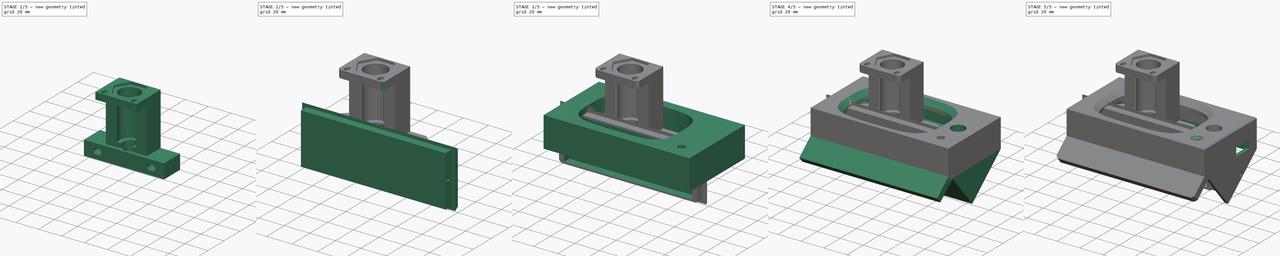
[diagram: build sequence overview — one tinted view per stage of 5, left to right]
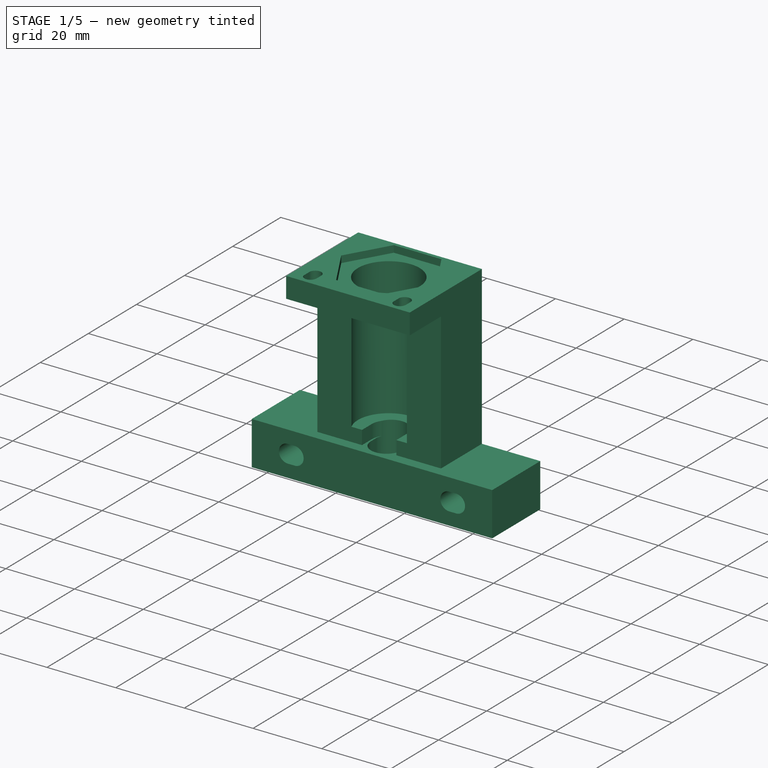
[diagram: stage 1 of 5 — iso view after this stage's code; geometry added in this stage tinted green]
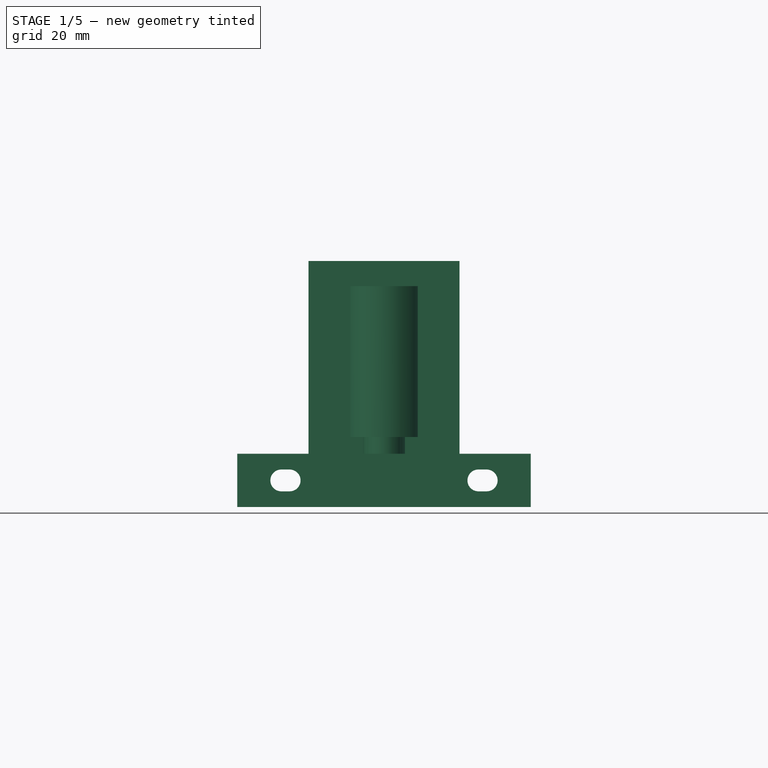
[diagram: stage 1 of 5 — front view after this stage's code; geometry added in this stage tinted green]
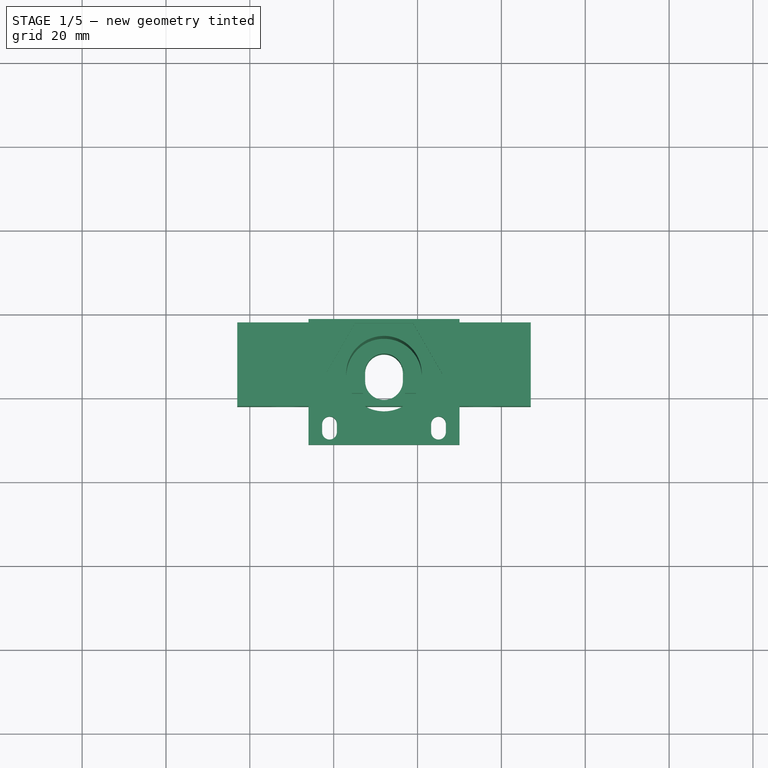
[diagram: stage 1 of 5 — top view after this stage's code; geometry added in this stage tinted green]
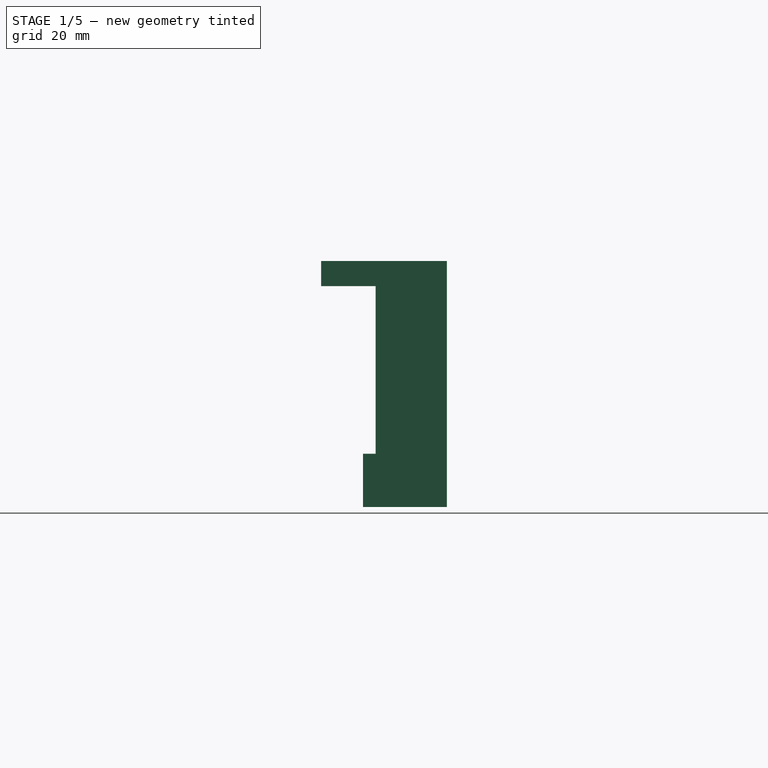
[diagram: stage 1 of 5 — right view after this stage's code; geometry added in this stage tinted green]
FCSTD DOCUMENT  (FreeCAD 0.19R)
Label: ScreenPodOnly
License: All rights reserved
LicenseURL: http://en.wikipedia.org/wiki/All_rights_reserved
objects: Sketcher::SketchObject×27, PartDesign::Pocket×18, PartDesign::Chamfer×12, PartDesign::Pad×8, PartDesign::Body×3, PartDesign::Mirrored×1, PartDesign::Fillet×1
note: 109 computed .brp shape members not serialized (recipe doc carries the construction recipe); baked Part::Feature solids carry a one-line shape summary decoded from their .brp

FEATURE [PartDesign::Body] Body001  label="BoxCap"
  Group = -> [Sketch018,Pad003,Sketch019,Pad004,Sketch020,Pocket008,Sketch021,Sketch024,Pocket012,Mirrored,Chamfer008,Pocket013,Chamfer009,Chamfer010,Chamfer011,Chamfer012]
  Origin = -> Origin001
  Placement = pos=(7,16.6296,-17.3502) rot=(-1,0,0;0.872665rad)
  Tip = -> Chamfer012
FEATURE [Sketcher::SketchObject] Sketch025  label="mountSlots"
  FullyConstrained = true
  MapMode = 5
  Placement = pos=(0,20.9938,0) rot=(0,0.707107,0.707107;3.14159rad)
  sketch-geometry (9):
    g0: ArcOfCircle CenterX=-16.5 CenterY=6.35 CenterZ=0 NormalX=0 NormalY=0 NormalZ=1 AngleXU=0 Radius=2.6 StartAngle=1.5708 EndAngle=4.71239
    g1: ArcOfCircle CenterX=-14.5 CenterY=6.35 CenterZ=0 NormalX=0 NormalY=0 NormalZ=1 AngleXU=0 Radius=2.6 StartAngle=4.71239 EndAngle=7.85398
    g2: LineSegment StartX=-16.5 StartY=3.75 StartZ=0 EndX=-14.5 EndY=3.75 EndZ=0
    g3: LineSegment StartX=-16.5 StartY=8.95 StartZ=0 EndX=-14.5 EndY=8.95 EndZ=0
    g4: ArcOfCircle CenterX=30.5 CenterY=6.35 CenterZ=0 NormalX=0 NormalY=0 NormalZ=1 AngleXU=0 Radius=2.6 StartAngle=1.5708 EndAngle=4.71239
    g5: ArcOfCircle CenterX=32.5 CenterY=6.35 CenterZ=0 NormalX=0 NormalY=0 NormalZ=1 AngleXU=0 Radius=2.6 StartAngle=4.71239 EndAngle=7.85398
    g6: LineSegment StartX=30.5 StartY=3.75 StartZ=0 EndX=32.5 EndY=3.75 EndZ=0
    g7: LineSegment StartX=30.5 StartY=8.95 StartZ=0 EndX=32.5 EndY=8.95 EndZ=0
    g8: Circle CenterX=8 CenterY=6.35 CenterZ=0 NormalX=0 NormalY=0 NormalZ=1 AngleXU=0 Radius=0.77
  constraints (22):
    c: Tangent(g0,g3) = 1.5708
    c: Tangent(g0,g2) = -1.5708
    c: Tangent(g2,g1) = -1.5708
    c: Tangent(g3,g1) = 1.5708
    c: Horizontal(g2)
    c: Equal(g0,g1)
    c: Tangent(g4,g7) = 1.5708
    c: Tangent(g4,g6) = -1.5708
    c: Tangent(g6,g5) = -1.5708
    c: Tangent(g7,g5) = 1.5708
    c: Horizontal(g6)
    c: Equal(g4,g5)
    c: Distance(g1,g1) = 5.2
    c: Distance(g5,g5) = 5.2
    c: DistanceY(g1) = 6.35
    c: Distance(g6) = 2
    c: Distance(g2) = 2
    c: Distance(g1,g4) = 45
    c: Symmetric(g1,g4,g8)
    c: DistanceX(g8) = 8
    c: DistanceY(g5) = 6.35
    c: Diameter(g8) = 1.54
FEATURE [Sketcher::SketchObject] Sketch026  label="hex"
  FullyConstrained = true
  MapMode = 5
  Placement = pos=(0,0,56.7) rot=(0,0,1;0rad)
  sketch-geometry (8):
    g0: Circle CenterX=-8 CenterY=5 CenterZ=0 NormalX=0 NormalY=0 NormalZ=1 AngleXU=0 Radius=11
    g1: LineSegment StartX=5.85641 StartY=5 StartZ=0 EndX=-1.0718 EndY=17 EndZ=0
    g2: LineSegment StartX=-1.0718 StartY=17 StartZ=0 EndX=-14.9282 EndY=17 EndZ=0
    g3: LineSegment StartX=-14.9282 StartY=17 StartZ=0 EndX=-21.8564 EndY=5 EndZ=0
    g4: LineSegment StartX=-21.8564 StartY=5 StartZ=0 EndX=-14.9282 EndY=-7 EndZ=0
    g5: LineSegment StartX=-14.9282 StartY=-7 StartZ=0 EndX=-1.0718 EndY=-7 EndZ=0
    g6: LineSegment StartX=-1.0718 StartY=-7 StartZ=0 EndX=5.85641 EndY=5 EndZ=0
    g7: Circle CenterX=-8 CenterY=5 CenterZ=0 NormalX=0 NormalY=0 NormalZ=1 AngleXU=0 Radius=13.8564
  constraints (19):
    c: Diameter(g0) = 22
    c: DistanceX(g0) = -8
    c: DistanceY(g0) = 5
    c: Coincident(g1,g2)
    c: Coincident(g2,g3)
    c: Coincident(g3,g4)
    c: Coincident(g4,g5)
    c: Coincident(g5,g6)
    c: Coincident(g6,g1)
    c: Equal(g1, g2-g6) x5
    c: PointOnObject(g1,g7)
    c: PointOnObject(g2,g7)
    c: PointOnObject(g3,g7)
    c: PointOnObject(g4,g7)
    c: PointOnObject(g5,g7)
    c: PointOnObject(g6,g7)
    c: Coincident(g7,g0)
    c: Distance(g1,g4) = 24
    c: Horizontal(g2)
FEATURE [Sketcher::SketchObject] Sketch027  label="StepperPlatform"
  FullyConstrained = false
  MapMode = 5
  Placement = pos=(0,0,52.7) rot=(0,0,1;0rad)
  sketch-geometry (22):
    g0: Circle CenterX=-21 CenterY=18 CenterZ=0 NormalX=0 NormalY=0 NormalZ=1 AngleXU=0 Radius=1.4
    g1: Circle CenterX=5 CenterY=18 CenterZ=0 NormalX=0 NormalY=0 NormalZ=1 AngleXU=0 Radius=1.4
    g2: Circle CenterX=-21 CenterY=-8 CenterZ=0 NormalX=0 NormalY=0 NormalZ=1 AngleXU=0 Radius=1.4
    g3: Circle CenterX=5 CenterY=-8 CenterZ=0 NormalX=0 NormalY=0 NormalZ=1 AngleXU=0 Radius=1.4
    g4: LineSegment StartX=-21 StartY=18 StartZ=0 EndX=5 EndY=18 EndZ=0
    g5: LineSegment StartX=5 StartY=18 StartZ=0 EndX=5 EndY=-8 EndZ=0
    g6: LineSegment StartX=5 StartY=-8 StartZ=0 EndX=-21 EndY=-8 EndZ=0
    g7: LineSegment StartX=-21 StartY=-8 StartZ=0 EndX=-21 EndY=18 EndZ=0
    g8: Circle CenterX=-8 CenterY=5 CenterZ=0 NormalX=0 NormalY=0 NormalZ=1 AngleXU=0 Radius=1.66613
    g9: LineSegment StartX=-26 StartY=18 StartZ=0 EndX=10 EndY=18 EndZ=0
    g10: LineSegment StartX=10 StartY=18 StartZ=0 EndX=10 EndY=-12 EndZ=0
    g11: LineSegment StartX=10 StartY=-12 StartZ=0 EndX=-26 EndY=-12 EndZ=0
    g12: LineSegment StartX=-26 StartY=-12 StartZ=0 EndX=-26 EndY=18 EndZ=0
    g13: LineSegment StartX=-8 StartY=22.1839 StartZ=0 EndX=-8 EndY=5 EndZ=0
    g14: ArcOfCircle CenterX=-21 CenterY=-7 CenterZ=0 NormalX=0 NormalY=0 NormalZ=1 AngleXU=0 Radius=1.75 StartAngle=0 EndAngle=3.14159
    g15: ArcOfCircle CenterX=-21 CenterY=-9 CenterZ=0 NormalX=0 NormalY=0 NormalZ=1 AngleXU=0 Radius=1.75 StartAngle=3.14159 EndAngle=6.28319
    g16: LineSegment StartX=-22.75 StartY=-7 StartZ=0 EndX=-22.75 EndY=-9 EndZ=0
    g17: LineSegment StartX=-19.25 StartY=-7 StartZ=0 EndX=-19.25 EndY=-9 EndZ=0
    g18: ArcOfCircle CenterX=5 CenterY=-7 CenterZ=0 NormalX=0 NormalY=0 NormalZ=1 AngleXU=0 Radius=1.75 StartAngle=1e-16 EndAngle=3.14159
    g19: ArcOfCircle CenterX=5 CenterY=-9 CenterZ=0 NormalX=0 NormalY=0 NormalZ=1 AngleXU=0 Radius=1.75 StartAngle=3.14159 EndAngle=6.28319
    g20: LineSegment StartX=3.25 StartY=-7 StartZ=0 EndX=3.25 EndY=-9 EndZ=0
    g21: LineSegment StartX=6.75 StartY=-7 StartZ=0 EndX=6.75 EndY=-9 EndZ=0
  constraints (52):
    c: Coincident(g4,g0)
    c: Coincident(g4,g1)
    c: Horizontal(g4)
    c: Coincident(g4,g5)
    c: Coincident(g5,g3)
    c: Coincident(g5,g6)
    c: Coincident(g6,g2)
    c: Horizontal(g6)
    c: Coincident(g6,g7)
    c: Coincident(g7,g4)
    c: Distance(g7) = 26
    c: Equal(g7,g4)
    c: Equal(g4,g5)
    c: Vertical(g7)
    c: DistanceX(g8) = -8
    c: DistanceY(g8) = 5
    c: Diameter(g0) = 2.8
    c: Equal(g0,g1)
    c: Equal(g0,g3)
    c: Equal(g0,g2)
    c: Coincident(g9,g10)
    c: Coincident(g10,g11)
    c: Coincident(g11,g12)
    c: Coincident(g12,g9)
    c: Horizontal(g9)
    c: Horizontal(g11)
    c: Vertical(g10)
    c: Vertical(g12)
    c: Distance(g9) = 36
    c: Coincident(g13,g8)
    c: Tangent(g14,g17) = 1.5708
    c: Tangent(g14,g16) = -1.5708
    c: Tangent(g16,g15) = -1.5708
    c: Tangent(g17,g15) = 1.5708
    c: Vertical(g16)
    c: Equal(g14,g15)
    c: PointOnObject(g14,g7)
    c: Distance(g14,g2) = 1
    c: Distance(g15,g2) = 1
    c: Tangent(g18,g21) = 1.5708
    c: Tangent(g18,g20) = -1.5708
    c: Tangent(g20,g19) = -1.5708
    c: Tangent(g21,g19) = 1.5708
    c: Vertical(g20)
    c: Equal(g18,g19)
    c: PointOnObject(g18,g5)
    c: Distance(g18,g3) = 1
    c: Distance(g19,g3) = 1
    c: Diameter(g18) = 3.5
    c: Diameter(g14) = 3.5
    c: DistanceY(g9) = 18
    c: DistanceY(g10) = -12
FEATURE [Sketcher::SketchObject] Sketch028  label="leadSlot"
  FullyConstrained = true
  MapMode = 5
  Placement = pos=(0,0,52.7) rot=(0,0,1;0rad)
  sketch-geometry (4):
    g0: ArcOfCircle CenterX=-8 CenterY=5 CenterZ=0 NormalX=0 NormalY=0 NormalZ=1 AngleXU=0 Radius=5 StartAngle=2e-16 EndAngle=3.14159
    g1: LineSegment StartX=-3 StartY=5 StartZ=0 EndX=-3 EndY=-7.39 EndZ=0
    g2: LineSegment StartX=-3 StartY=-7.39 StartZ=0 EndX=-13 EndY=-7.39 EndZ=0
    g3: LineSegment StartX=-13 StartY=-7.39 StartZ=0 EndX=-13 EndY=5 EndZ=0
  constraints (11):
    c: Tangent(g0,g1) = 1.5708
    c: Coincident(g1,g2)
    c: Horizontal(g2)
    c: Coincident(g2,g3)
    c: Vertical(g3)
    c: Diameter(g0) = 10
    c: Vertical(g1)
    c: DistanceX(g0) = -8
    c: DistanceY(g0) = 5
    c: Tangent(g3,g0) = 1.5708
    c: Distance(g1) = 12.39
FEATURE [Sketcher::SketchObject] Sketch029  label="BottomBit"
  FullyConstrained = false
  MapMode = 5
  Support = -> [XY_Plane002]
  sketch-geometry (5):
    g0: LineSegment StartX=-43 StartY=18 StartZ=0 EndX=27 EndY=18 EndZ=0
    g1: LineSegment StartX=27 StartY=-2 StartZ=0 EndX=-43 EndY=-2 EndZ=0
    g2: LineSegment StartX=27 StartY=18 StartZ=0 EndX=27 EndY=-2 EndZ=0
    g3: LineSegment StartX=-43 StartY=18 StartZ=0 EndX=-43 EndY=-2 EndZ=0
    g4: LineSegment StartX=-8 StartY=20.77 StartZ=0 EndX=-8 EndY=17.2529 EndZ=0
  constraints (13):
    c: Horizontal(g1)
    c: DistanceY(g1) = -2
    c: DistanceY(g0) = 18
    c: Coincident(g2,g0)
    c: Vertical(g2)
    c: Coincident(g3,g0)
    c: Vertical(g3)
    c: Coincident(g3,g1)
    c: Coincident(g1,g2)
    c: Horizontal(g0)
    c: Symmetric(g0,g0,g4)
    c: DistanceX(g4) = -8
    c: Distance(g0) = 70
FEATURE [PartDesign::Pad] Pad005
  Direction = (1,1,1)
  Length = 12.7
  Length2 = 100
  Profile = -> Sketch029
  Type = 0
FEATURE [Sketcher::SketchObject] Sketch012  label="towerProper"
  FullyConstrained = false
  MapMode = 5
  Placement = pos=(0,0,12.7) rot=(0,0,1;0rad)
  Support = -> [Pad005]
  sketch-geometry (5):
    g0: LineSegment StartX=-26 StartY=18 StartZ=0 EndX=10 EndY=18 EndZ=0
    g1: LineSegment StartX=10 StartY=18 StartZ=0 EndX=10 EndY=1 EndZ=0
    g2: LineSegment StartX=10 StartY=1 StartZ=0 EndX=-26 EndY=1 EndZ=0
    g3: LineSegment StartX=-26 StartY=1 StartZ=0 EndX=-26 EndY=18 EndZ=0
    g4: LineSegment StartX=-8 StartY=21.6614 StartZ=0 EndX=-8 EndY=16.5307 EndZ=0
  constraints (13):
    c: Coincident(g0,g1)
    c: Coincident(g1,g2)
    c: Coincident(g2,g3)
    c: Coincident(g3,g0)
    c: Horizontal(g2)
    c: Vertical(g1)
    c: Vertical(g3)
    c: Distance(g0) = 36
    c: Vertical(g4)
    c: Symmetric(g0,g0,g4)
    c: DistanceX(g4) = -8
    c: DistanceY(g0) = 18
    c: DistanceY(g1) = 1
FEATURE [PartDesign::Pad] Pad006
  BaseFeature = -> Pad005
  Direction = (1,1,1)
  Length = 40
  Length2 = 100
  Profile = -> Sketch012
  Type = 0
FEATURE [PartDesign::Pocket] Pocket016
  BaseFeature = -> Pad006
  Length = 40
  Length2 = 100
  Profile = -> Sketch028
  Type = 0
FEATURE [PartDesign::Pocket] Pocket014
  BaseFeature = -> Pocket016
  Length = 5
  Length2 = 100
  Profile = -> Sketch025
  Type = 1
FEATURE [PartDesign::Pad] Pad007
  BaseFeature = -> Pocket014
  Direction = (1,1,1)
  Length = 6
  Length2 = 100
  Profile = -> Sketch027
  Type = 0
FEATURE [PartDesign::Pocket] Pocket017
  BaseFeature = -> Pad007
  Length = 2
  Length2 = 100
  Profile = -> Sketch026
  Reversed = true
  Type = 0
FEATURE [Sketcher::SketchObject] Sketch030  label="leadscrew"
  FullyConstrained = true
  MapMode = 5
  Placement = pos=(0,0,12.7) rot=(0,0,1;0rad)
  sketch-geometry (4):
    g0: ArcOfCircle CenterX=-8 CenterY=6 CenterZ=0 NormalX=0 NormalY=0 NormalZ=1 AngleXU=0 Radius=4.5 StartAngle=1e-16 EndAngle=3.14159
    g1: ArcOfCircle CenterX=-8 CenterY=4 CenterZ=0 NormalX=0 NormalY=0 NormalZ=1 AngleXU=0 Radius=4.5 StartAngle=3.14159 EndAngle=6.28319
    g2: LineSegment StartX=-12.5 StartY=6 StartZ=0 EndX=-12.5 EndY=4 EndZ=0
    g3: LineSegment StartX=-3.5 StartY=6 StartZ=0 EndX=-3.5 EndY=4 EndZ=0
  constraints (10):
    c: Tangent(g0,g3) = 1.5708
    c: Tangent(g0,g2) = -1.5708
    c: Tangent(g2,g1) = -1.5708
    c: Tangent(g3,g1) = 1.5708
    c: Vertical(g2)
    c: Equal(g0,g1)
    c: DistanceY(g1) = 4
    c: DistanceY(g0) = 6
    c: DistanceX(g0) = -8
    c: Diameter(g0) = 9
FEATURE [PartDesign::Pocket] Pocket015
  BaseFeature = -> Pocket017
  Length = 22
  Length2 = 100
  Profile = -> Sketch030
  Type = 4
FEATURE [Sketcher::SketchObject] Sketch013  label="counterbore"
  FullyConstrained = true
  MapMode = 5
  Placement = pos=(0,0,56.7) rot=(0,0,1;0rad)
  Support = -> [Pocket015]
  sketch-geometry (1):
    g0: Circle CenterX=-8 CenterY=5 CenterZ=0 NormalX=0 NormalY=0 NormalZ=1 AngleXU=0 Radius=9
  constraints (3):
    c: DistanceX(g0) = -8
    c: DistanceY(g0) = 5
    c: Diameter(g0) = 18
FEATURE [PartDesign::Pocket] Pocket018
  BaseFeature = -> Pocket015
  Length = 40
  Length2 = 100
  Profile = -> Sketch013
  Type = 0
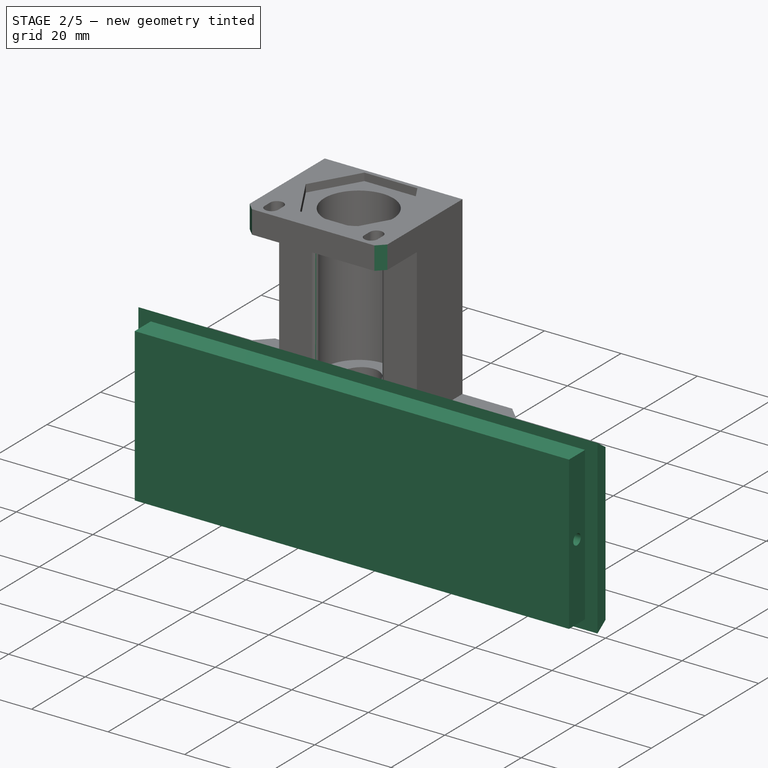
[diagram: stage 2 of 5 — iso view after this stage's code; geometry added in this stage tinted green]
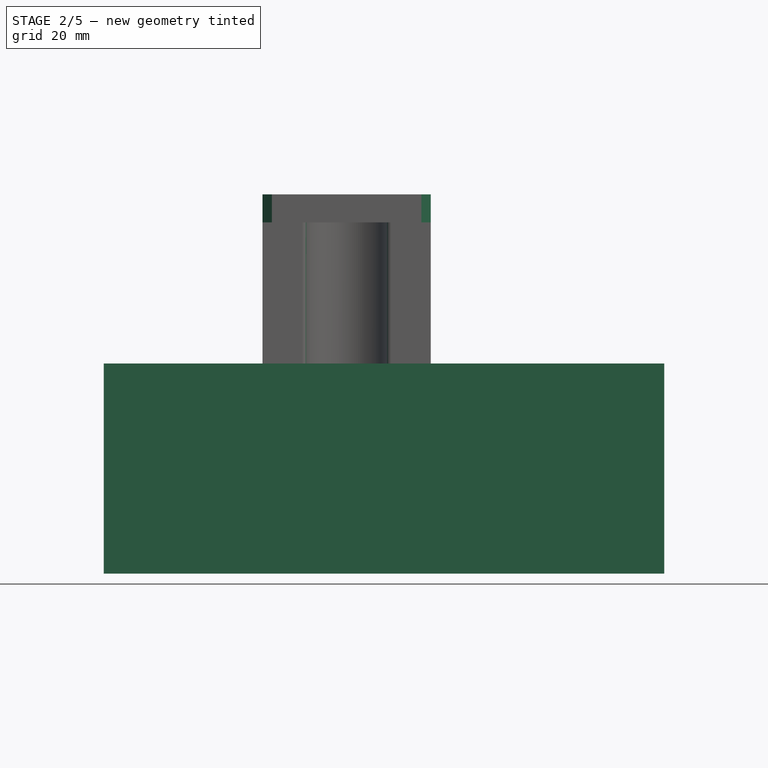
[diagram: stage 2 of 5 — front view after this stage's code; geometry added in this stage tinted green]
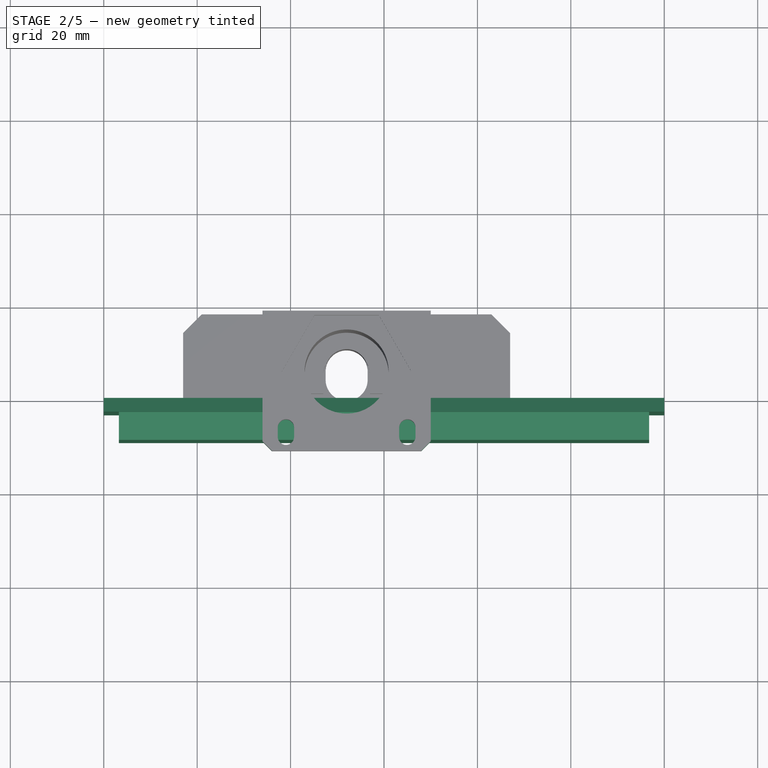
[diagram: stage 2 of 5 — top view after this stage's code; geometry added in this stage tinted green]
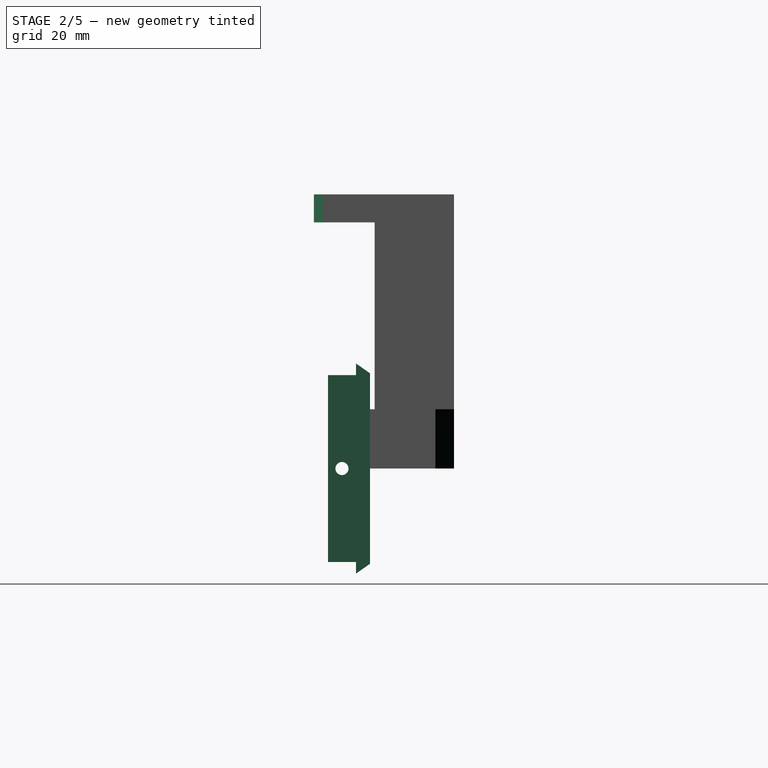
[diagram: stage 2 of 5 — right view after this stage's code; geometry added in this stage tinted green]
FEATURE [Sketcher::SketchObject] Sketch017
  ExternalGeometry = -> [Chamfer001]
  FullyConstrained = false
  MapMode = 5
  Placement = pos=(0,13.4282,-16.0031) rot=(1,0,0;3.83972rad)
  Support = -> [Chamfer001]
  sketch-geometry (4):
    g0: LineSegment StartX=-53 StartY=-24.6078 StartZ=0 EndX=67 EndY=-24.6078 EndZ=0
    g1: LineSegment StartX=67 StartY=-24.6078 StartZ=0 EndX=67 EndY=20.3922 EndZ=0
    g2: LineSegment StartX=67 StartY=20.3922 StartZ=0 EndX=-53 EndY=20.3922 EndZ=0
    g3: LineSegment StartX=-53 StartY=20.3922 StartZ=0 EndX=-53 EndY=-24.6078 EndZ=0
  constraints (11):
    c: Coincident(g0,g1)
    c: Coincident(g1,g2)
    c: Coincident(g2,g3)
    c: Coincident(g3,g0)
    c: Horizontal(g0)
    c: Horizontal(g2)
    c: Vertical(g1)
    c: Vertical(g3)
    c: Distance(g2) = 120
    c: DistanceX(g2) = -53
    c: Distance(g3) = 45
FEATURE [Sketcher::SketchObject] Sketch018
  FullyConstrained = true
  MapMode = 5
  Placement = pos=(0,0,0) rot=(1,0,0;1.5708rad)
  Support = -> [XZ_Plane001]
  sketch-geometry (4):
    g0: LineSegment StartX=-60 StartY=22.5 StartZ=0 EndX=60 EndY=22.5 EndZ=0
    g1: LineSegment StartX=60 StartY=22.5 StartZ=0 EndX=60 EndY=-22.5 EndZ=0
    g2: LineSegment StartX=60 StartY=-22.5 StartZ=0 EndX=-60 EndY=-22.5 EndZ=0
    g3: LineSegment StartX=-60 StartY=-22.5 StartZ=0 EndX=-60 EndY=22.5 EndZ=0
  constraints (10):
    c: Coincident(g0,g1)
    c: Coincident(g1,g2)
    c: Coincident(g2,g3)
    c: Coincident(g3,g0)
    c: Horizontal(g2)
    c: Vertical(g3)
    c: Symmetric(g0,g0,g-2)
    c: Distance(g0) = 120
    c: Distance(g1) = 45
    c: Symmetric(g1,g0,g-1)
FEATURE [PartDesign::Pad] Pad003
  Direction = (1,1,1)
  Length = 3
  Length2 = 100
  Placement = pos=(0,0,0) rot=(1,0,0;1.5708rad)
  Profile = -> Sketch018
  Type = 0
FEATURE [Sketcher::SketchObject] Sketch019
  FullyConstrained = true
  MapMode = 5
  Placement = pos=(0,-3,7e-16) rot=(1,0,0;1.5708rad)
  Support = -> [Pad003]
  sketch-geometry (4):
    g0: LineSegment StartX=-56.75 StartY=20 StartZ=0 EndX=56.75 EndY=20 EndZ=0
    g1: LineSegment StartX=56.75 StartY=20 StartZ=0 EndX=56.75 EndY=-20 EndZ=0
    g2: LineSegment StartX=56.75 StartY=-20 StartZ=0 EndX=-56.75 EndY=-20 EndZ=0
    g3: LineSegment StartX=-56.75 StartY=-20 StartZ=0 EndX=-56.75 EndY=20 EndZ=0
  constraints (11):
    c: Coincident(g0,g1)
    c: Coincident(g1,g2)
    c: Coincident(g2,g3)
    c: Coincident(g3,g0)
    c: Horizontal(g0)
    c: Horizontal(g2)
    c: Vertical(g1)
    c: Vertical(g3)
    c: Distance(g0) = 113.5
    c: Distance(g1) = 40
    c: Symmetric(g1,g0,g-1)
FEATURE [PartDesign::Pad] Pad004
  BaseFeature = -> Pad003
  Direction = (1,1,1)
  Length = 6
  Length2 = 100
  Placement = pos=(0,0,0) rot=(1,0,0;1.5708rad)
  Profile = -> Sketch019
  Type = 0
FEATURE [Sketcher::SketchObject] Sketch020
  FullyConstrained = true
  MapMode = 5
  Placement = pos=(56.75,0,0) rot=(0.707107,0,0.707107;3.14159rad)
  Support = -> [Pad004]
  sketch-geometry (1):
    g0: Circle CenterX=0 CenterY=6 CenterZ=0 NormalX=0 NormalY=0 NormalZ=1 AngleXU=0 Radius=1.4
  constraints (3):
    c: PointOnObject(g0,g-2)
    c: Diameter(g0) = 2.8
    c: DistanceY(g0) = 6
FEATURE [PartDesign::Pocket] Pocket008
  BaseFeature = -> Pad004
  Length = 5
  Length2 = 100
  Placement = pos=(0,0,0) rot=(1,0,0;1.5708rad)
  Profile = -> Sketch020
  Type = 1
FEATURE [PartDesign::Body] Body  label="ScreenBox"
  Group = -> [Sketch,Pad,Sketch001,Sketch004,Pocket001,Pocket,Sketch005,Pocket002,Chamfer,Sketch006,Pad001,Sketch007,Pocket003,Sketch008,Pocket004,Sketch009,Pocket005,Sketch010,Pad002,Sketch015,Pocket006,Sketch016,Pocket007,Chamfer001,Sketch017,Sketch022,Pocket010,Chamfer005,Chamfer006,Sketch023,Pocket011,Chamfer007]
  Origin = -> Origin
  Tip = -> Chamfer007
FEATURE [Sketcher::SketchObject] Sketch024
  ExternalGeometry = -> [Pocket008]
  FullyConstrained = false
  MapMode = 5
  Placement = pos=(60,0,0) rot=(0.707107,0,0.707107;3.14159rad)
  Support = -> [Pocket008]
  sketch-geometry (3):
    g0: LineSegment StartX=-22.5 StartY=3 StartZ=0 EndX=-17.8755 EndY=-3.60453 EndZ=0
    g1: LineSegment StartX=-17.8755 StartY=-3.60453 StartZ=0 EndX=-35.5163 EndY=-3.60453 EndZ=0
    g2: LineSegment StartX=-35.5163 StartY=-3.60453 StartZ=0 EndX=-22.5 EndY=3 EndZ=0
  constraints (6):
    c: Coincident(g0,g1)
    c: Horizontal(g1)
    c: Coincident(g1,g2)
    c: Coincident(g2,g0)
    c: Angle(g0) = -0.959931
    c: Coincident(g0,g-3)
FEATURE [PartDesign::Pocket] Pocket012
  BaseFeature = -> Pocket008
  Length = 5
  Length2 = 100
  Placement = pos=(0,0,0) rot=(1,0,0;1.5708rad)
  Profile = -> Sketch024
  Type = 1
FEATURE [PartDesign::Mirrored] Mirrored
  BaseFeature = -> Pocket012
  MirrorPlane = -> Sketch024 [V_Axis]
  Originals = -> [Pocket012]
  Placement = pos=(0,0,0) rot=(1,0,0;1.5708rad)
FEATURE [PartDesign::Fillet] Fillet
  Base = -> Pocket018 [Edge83,Edge72]
  BaseFeature = -> Pocket018
  Radius = 1
  SupportTransform = false
FEATURE [PartDesign::Chamfer] Chamfer014
  Angle = 45
  Base = -> Fillet [Edge52,Edge57]
  BaseFeature = -> Fillet
  ChamferType = 0
  FlipDirection = false
  Size = 2
  Size2 = 1
  SupportTransform = false
FEATURE [PartDesign::Chamfer] Chamfer013
  Angle = 45
  Base = -> Chamfer014 [Edge135,Edge133]
  BaseFeature = -> Chamfer014
  ChamferType = 0
  FlipDirection = false
  Size = 4
  Size2 = 1
  SupportTransform = false
FEATURE [PartDesign::Body] Body002  label="Ztower"
  Group = -> [Sketch029,Pad005,Sketch028,Sketch030,Sketch027,Sketch026,Sketch025,Sketch012,Pad006,Pocket016,Pocket014,Pad007,Pocket017,Pocket015,Sketch013,Pocket018,Fillet,Chamfer014,Chamfer013]
  Origin = -> Origin002
  Placement = pos=(-0.401038,-43.0056,-24.8059) rot=(0.007695,0.882707,-0.469861;3.13341rad)
  Tip = -> Chamfer013
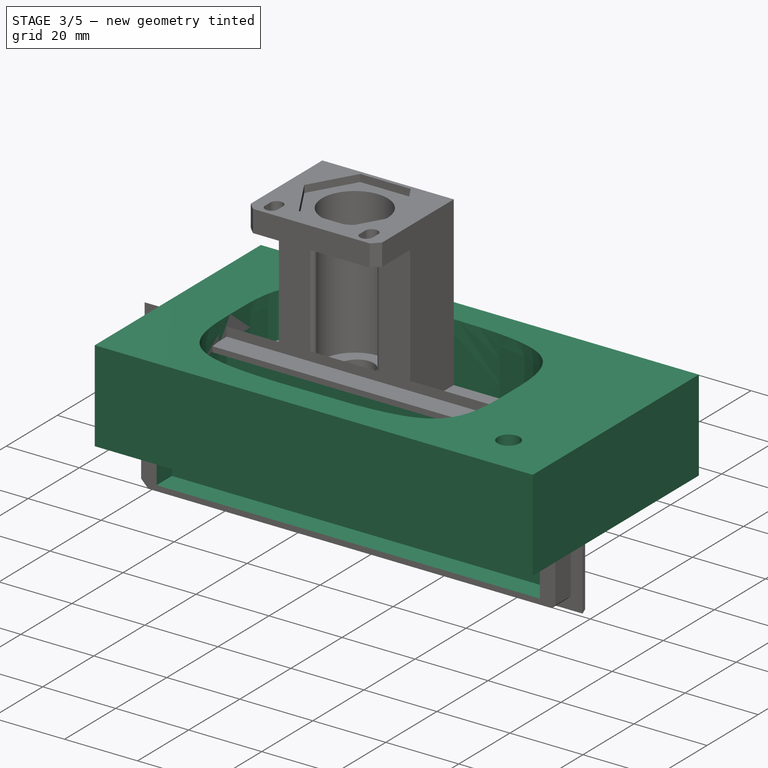
[diagram: stage 3 of 5 — iso view after this stage's code; geometry added in this stage tinted green]
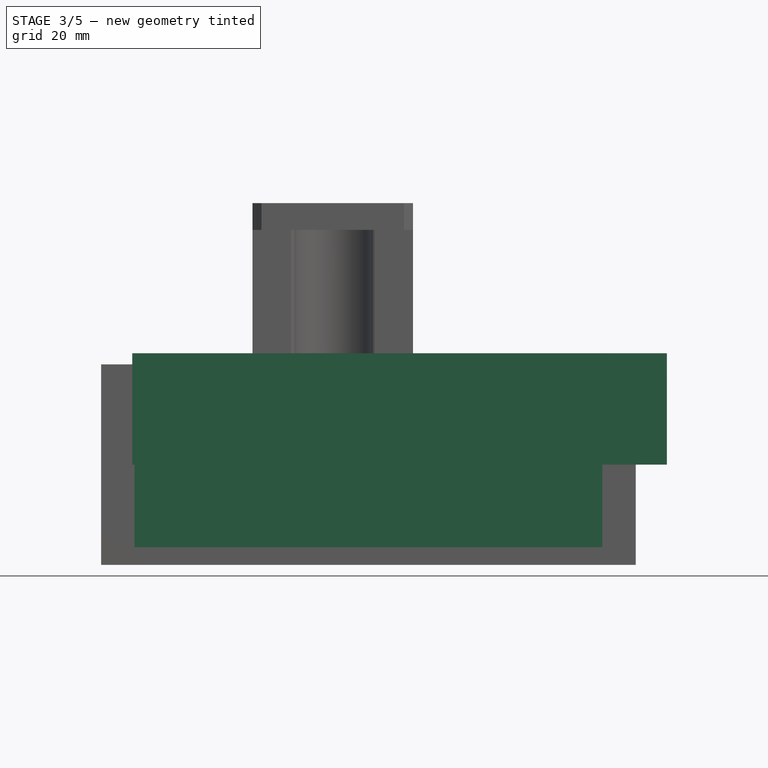
[diagram: stage 3 of 5 — front view after this stage's code; geometry added in this stage tinted green]
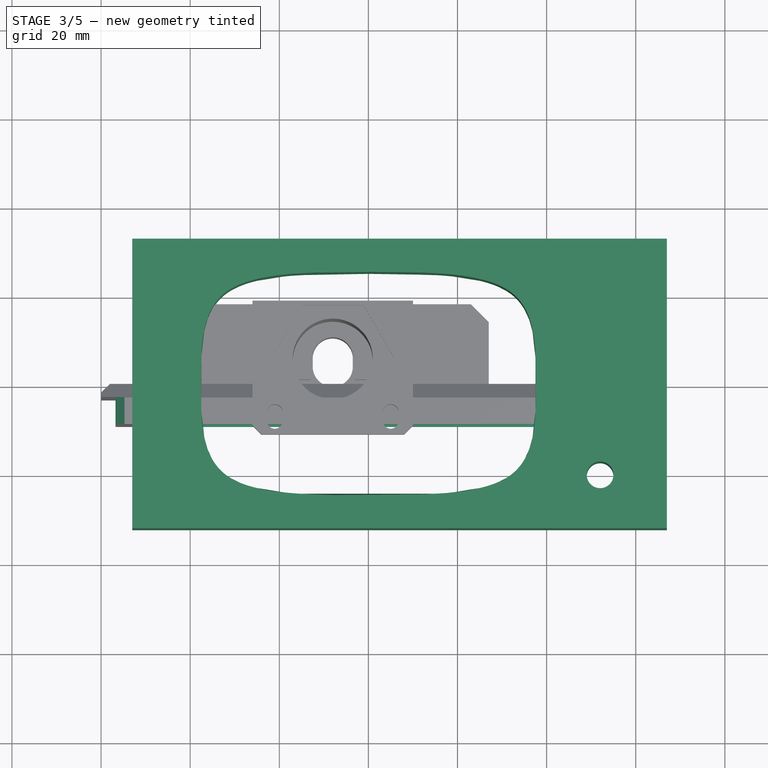
[diagram: stage 3 of 5 — top view after this stage's code; geometry added in this stage tinted green]
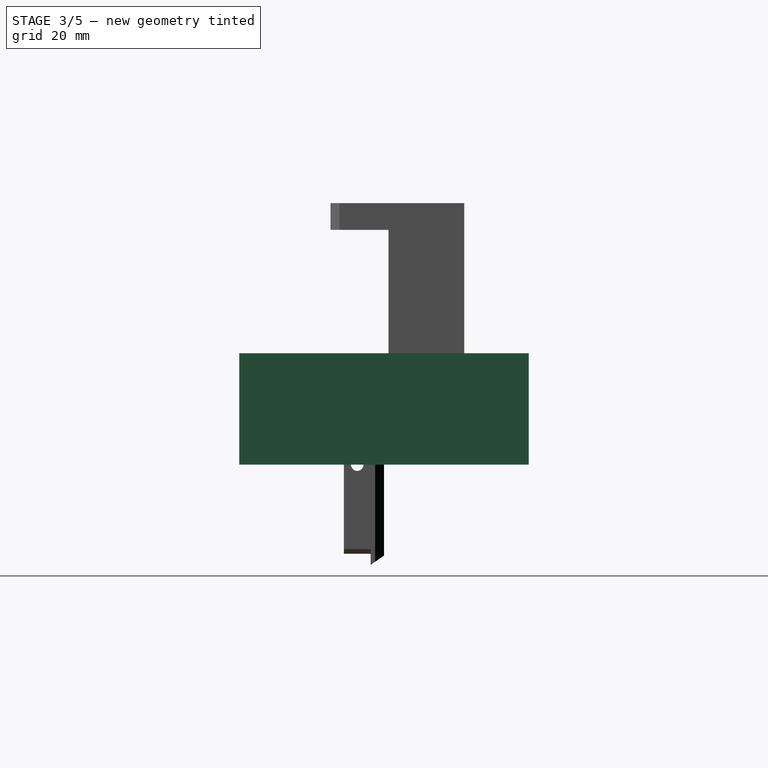
[diagram: stage 3 of 5 — right view after this stage's code; geometry added in this stage tinted green]
FEATURE [Sketcher::SketchObject] Sketch
  FullyConstrained = true
  MapMode = 5
  Support = -> [XY_Plane]
  sketch-geometry (30):
    g0: LineSegment StartX=-53 StartY=32.5 StartZ=0 EndX=67 EndY=32.5 EndZ=0
    g1: LineSegment StartX=67 StartY=32.5 StartZ=0 EndX=67 EndY=-32.5 EndZ=0
    g2: LineSegment StartX=67 StartY=-32.5 StartZ=0 EndX=-53 EndY=-32.5 EndZ=0
    g3: LineSegment StartX=-53 StartY=-32.5 StartZ=0 EndX=-53 EndY=32.5 EndZ=0
    g4: LineSegment StartX=-37 StartY=24.5 StartZ=0 EndX=37 EndY=24.5 EndZ=0
    g5: LineSegment StartX=37 StartY=24.5 StartZ=0 EndX=37 EndY=-24.5 EndZ=0
    g6: LineSegment StartX=37 StartY=-24.5 StartZ=0 EndX=-37 EndY=-24.5 EndZ=0
    g7: LineSegment StartX=-37 StartY=-24.5 StartZ=0 EndX=-37 EndY=24.5 EndZ=0
    g8: LineSegment StartX=-37.7408 StartY=25.116 StartZ=0 EndX=37.7408 EndY=25.116 EndZ=0
    g9: LineSegment StartX=37.7408 StartY=25.116 StartZ=0 EndX=37.7408 EndY=-25.116 EndZ=0
    g10: LineSegment StartX=37.7408 StartY=-25.116 StartZ=0 EndX=-37.7408 EndY=-25.116 EndZ=0
    g11: LineSegment StartX=-37.7408 StartY=-25.116 StartZ=0 EndX=-37.7408 EndY=25.116 EndZ=0
    g12-g19: Circle x8 (B-spline internal-alignment scaffolding for g20; pole/knot coordinates omitted)
    g20: BSplineCurve PolesCount=8 KnotsCount=9 Degree=3 IsPeriodic=1
    g21-g29: GeomPoint x9 (B-spline internal-alignment scaffolding for g20; pole/knot coordinates omitted)
  constraints (53):
    c: Coincident(g0,g1)
    c: Coincident(g1,g2)
    c: Coincident(g2,g3)
    c: Coincident(g3,g0)
    c: Horizontal(g0)
    c: Horizontal(g2)
    c: Vertical(g1)
    c: Vertical(g3)
    c: Coincident(g4,g5)
    c: Coincident(g5,g6)
    c: Coincident(g6,g7)
    c: Coincident(g7,g4)
    c: Horizontal(g4)
    c: Vertical(g7)
    c: Distance(g5) = 49
    c: Distance(g4,g3) = 16
    c: Distance(g0,g5) = 30
    c: Distance(g6,g2) = 8
    c: Distance(g4,g0) = 8
    c: Distance(g6) = 74
    c: Symmetric(g5,g6,g-2)
    c: Symmetric(g5,g4,g-1)
    c: Coincident(g8,g9)
    c: Coincident(g9,g10)
    c: Coincident(g10,g11)
    c: Coincident(g11,g8)
    c: Horizontal(g8)
    c: Horizontal(g10)
    c: Vertical(g9)
    c: Vertical(g11)
    c: Symmetric(g9,g8,g-1)
    c: Weight(g12) = 1
    c: Equal(g12,g13)
    c: Equal(g12,g14)
    c: Equal(g12,g15)
    c: PointOnObject(g15,g-1)
    c: Equal(g12,g16)
    c: Equal(g12,g17)
    c: PointOnObject(g17,g-2)
    c: Equal(g12,g18)
    c: Equal(g12,g19)
    c: InternalAlignment(g12-g19 -> g20) x8
    c: InternalAlignment(g21-g29 -> g20) x9
    c: Coincident(g8,g12)
    c: Coincident(g14,g8)
    c: Coincident(g16,g10)
    c: Coincident(g18,g9)
    c: Distance(g19,g5) = 0.5
    c: Symmetric(g19,g15,g-2)
    c: Distance(g17,g6) = 0.5
    c: Symmetric(g17,g13,g-1)
    c: DistanceX(g8) = 37.7408
    c: DistanceY(g8) = 25.116
FEATURE [PartDesign::Pad] Pad
  Direction = (1,1,1)
  Length = 25
  Length2 = 100
  Profile = -> Sketch
  Type = 0
FEATURE [Sketcher::SketchObject] Sketch004  label="knob"
  FullyConstrained = false
  MapMode = 5
  Placement = pos=(0,0,0) rot=(1,0,0;3.14159rad)
  sketch-geometry (1):
    g0: Circle CenterX=52 CenterY=20.5 CenterZ=0 NormalX=0 NormalY=0 NormalZ=1 AngleXU=0 Radius=3
  constraints (1):
    c: Diameter(g0) = 6
FEATURE [PartDesign::Pocket] Pocket001
  BaseFeature = -> Pad
  Length = 5
  Length2 = 100
  Profile = -> Sketch004
  Type = 1
FEATURE [PartDesign::Chamfer] Chamfer008
  Angle = 45
  Base = -> Mirrored [Edge14,Edge12]
  BaseFeature = -> Mirrored
  ChamferType = 0
  FlipDirection = false
  Placement = pos=(0,0,0) rot=(1,0,0;1.5708rad)
  Size = 2
  Size2 = 1
  SupportTransform = false
FEATURE [PartDesign::Pocket] Pocket013
  BaseFeature = -> Chamfer008
  Length = 6
  Length2 = 100
  Placement = pos=(0,0,0) rot=(1,0,0;1.5708rad)
  Profile = -> Sketch021
  Type = 0
FEATURE [PartDesign::Chamfer] Chamfer009
  Angle = 45
  Base = -> Pocket013 [Edge29]
  BaseFeature = -> Pocket013
  ChamferType = 0
  FlipDirection = false
  Placement = pos=(0,0,0) rot=(1,0,0;1.5708rad)
  Size = 2
  Size2 = 1
  SupportTransform = false
FEATURE [PartDesign::Chamfer] Chamfer010
  Angle = 45
  Base = -> Chamfer009 [Edge11]
  BaseFeature = -> Chamfer009
  ChamferType = 0
  FlipDirection = false
  Placement = pos=(0,0,0) rot=(1,0,0;1.5708rad)
  Size = 1
  Size2 = 1
  SupportTransform = false
FEATURE [PartDesign::Chamfer] Chamfer011
  Angle = 45
  Base = -> Chamfer010 [Edge18]
  BaseFeature = -> Chamfer010
  ChamferType = 0
  FlipDirection = false
  Placement = pos=(0,0,0) rot=(1,0,0;1.5708rad)
  Size = 1
  Size2 = 1
  SupportTransform = false
FEATURE [PartDesign::Chamfer] Chamfer012
  Angle = 45
  Base = -> Chamfer011 [Edge20]
  BaseFeature = -> Chamfer011
  ChamferType = 0
  FlipDirection = false
  Placement = pos=(0,0,0) rot=(1,0,0;1.5708rad)
  Size = 2
  Size2 = 1
  SupportTransform = false
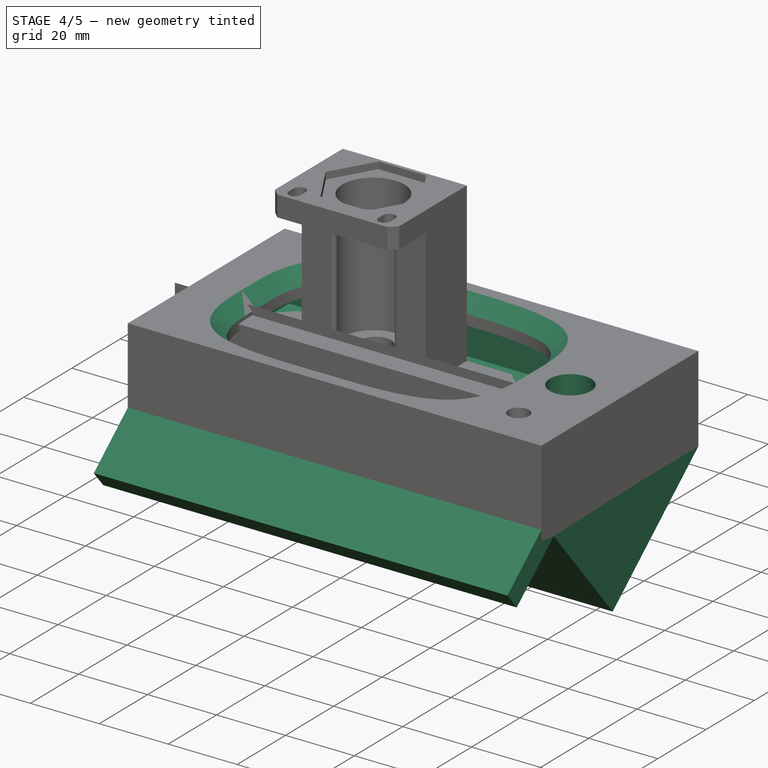
[diagram: stage 4 of 5 — iso view after this stage's code; geometry added in this stage tinted green]
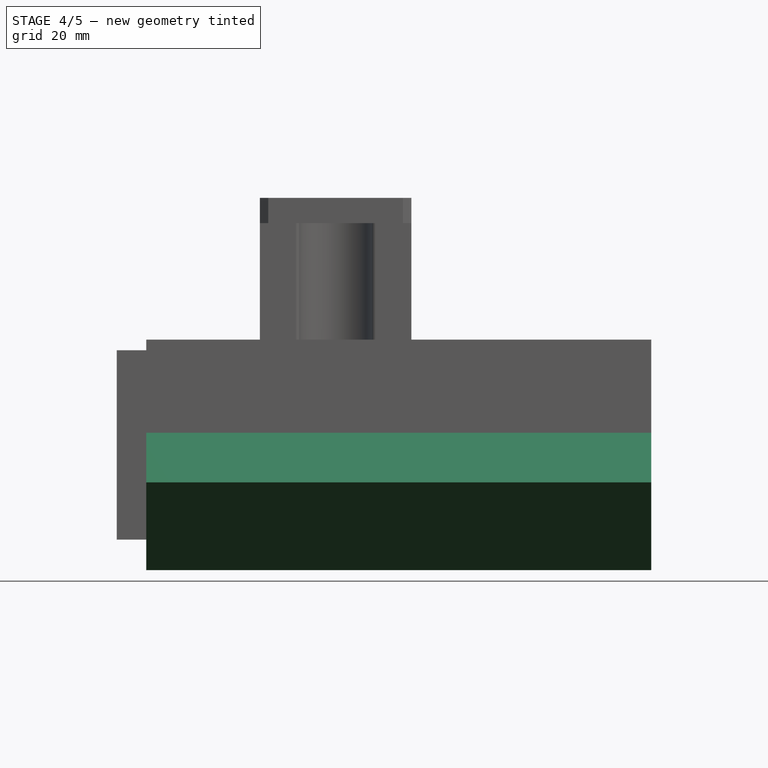
[diagram: stage 4 of 5 — front view after this stage's code; geometry added in this stage tinted green]
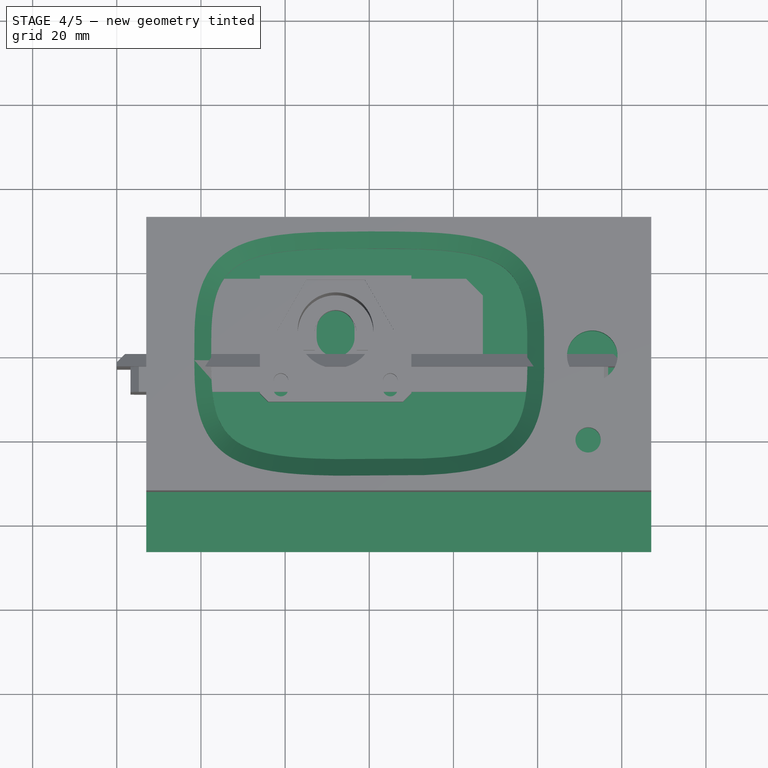
[diagram: stage 4 of 5 — top view after this stage's code; geometry added in this stage tinted green]
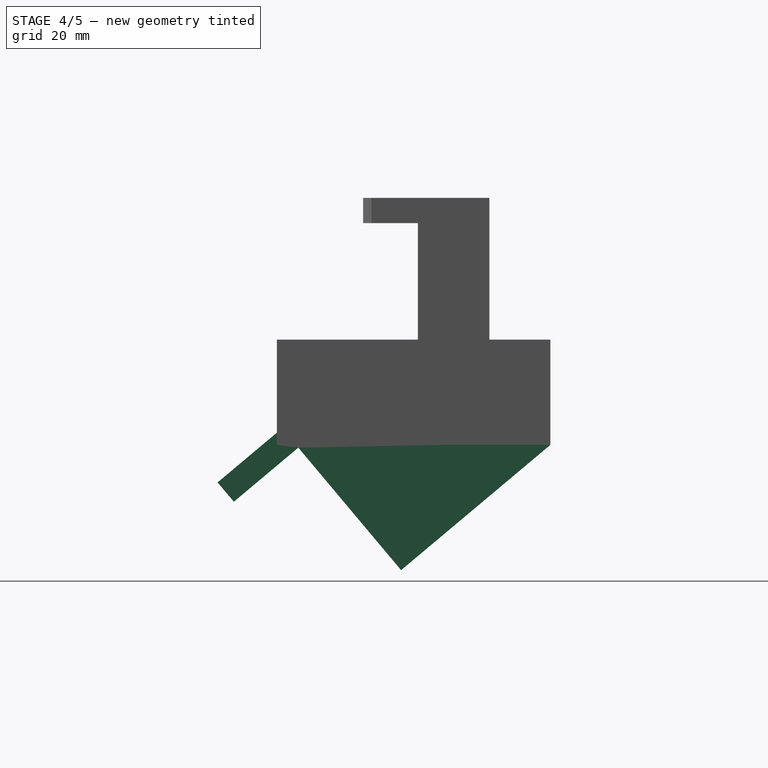
[diagram: stage 4 of 5 — right view after this stage's code; geometry added in this stage tinted green]
FEATURE [Sketcher::SketchObject] Sketch001  label="knob001"
  FullyConstrained = false
  MapMode = 5
  Placement = pos=(0,0,25) rot=(0,0,1;0rad)
  Support = -> [Pocket001]
  sketch-geometry (1):
    g0: Circle CenterX=53 CenterY=-0.5 CenterZ=0 NormalX=0 NormalY=0 NormalZ=1 AngleXU=0 Radius=6
  constraints (2):
    c: Diameter(g0) = 12
    c: DistanceY(g0) = -0.5
FEATURE [PartDesign::Pocket] Pocket
  BaseFeature = -> Pocket001
  Length = 5
  Length2 = 100
  Profile = -> Sketch001
  Type = 1
FEATURE [Sketcher::SketchObject] Sketch005
  FullyConstrained = true
  MapMode = 5
  Placement = pos=(0,0,0) rot=(1,0,0;3.14159rad)
  Support = -> [Pocket]
  sketch-geometry (4):
    g0: LineSegment StartX=-50 StartY=30 StartZ=0 EndX=64 EndY=30 EndZ=0
    g1: LineSegment StartX=64 StartY=30 StartZ=0 EndX=64 EndY=-30 EndZ=0
    g2: LineSegment StartX=64 StartY=-30 StartZ=0 EndX=-50 EndY=-30 EndZ=0
    g3: LineSegment StartX=-50 StartY=-30 StartZ=0 EndX=-50 EndY=30 EndZ=0
  constraints (11):
    c: Coincident(g0,g1)
    c: Coincident(g1,g2)
    c: Coincident(g2,g3)
    c: Coincident(g3,g0)
    c: Horizontal(g0)
    c: Horizontal(g2)
    c: Vertical(g1)
    c: Symmetric(g2,g0,g-1)
    c: DistanceX(g0) = -50
    c: DistanceY(g0) = 30
    c: DistanceX(g1) = 64
FEATURE [PartDesign::Pocket] Pocket002
  BaseFeature = -> Pocket
  Length = 18
  Length2 = 100
  Profile = -> Sketch005
  Type = 0
FEATURE [PartDesign::Chamfer] Chamfer
  Angle = 45
  Base = -> Pocket002 [Edge19]
  BaseFeature = -> Pocket002
  ChamferType = 0
  FlipDirection = false
  Size = 4
  Size2 = 1
  SupportTransform = false
FEATURE [Sketcher::SketchObject] Sketch006  label="standofs"
  FullyConstrained = true
  MapMode = 5
  Placement = pos=(0,0,18) rot=(1,0,0;3.14159rad)
  Support = -> [Chamfer]
  sketch-geometry (4):
    g0: Circle CenterX=-45.5 CenterY=25 CenterZ=0 NormalX=0 NormalY=0 NormalZ=1 AngleXU=0 Radius=3.5
    g1: Circle CenterX=-45.5 CenterY=-25 CenterZ=0 NormalX=0 NormalY=0 NormalZ=1 AngleXU=0 Radius=3.5
    g2: Circle CenterX=58.5 CenterY=-25 CenterZ=0 NormalX=0 NormalY=0 NormalZ=1 AngleXU=0 Radius=3.5
    g3: Circle CenterX=58.5 CenterY=25 CenterZ=0 NormalX=0 NormalY=0 NormalZ=1 AngleXU=0 Radius=3.5
  constraints (10):
    c: Diameter(g0) = 7
    c: Equal(g0,g1)
    c: Equal(g0,g3)
    c: Equal(g0,g2)
    c: Symmetric(g1,g0,g-1)
    c: Symmetric(g2,g3,g-1)
    c: Distance(g3,g2) = 50
    c: Distance(g1,g0) = 50
    c: Distance(g3,g0) = 104
    c: DistanceX(g0) = -45.5
FEATURE [PartDesign::Pad] Pad001
  BaseFeature = -> Chamfer
  Direction = (1,1,1)
  Length = 4.5
  Length2 = 100
  Profile = -> Sketch006
  Type = 0
FEATURE [Sketcher::SketchObject] Sketch007  label="holes"
  FullyConstrained = true
  MapMode = 5
  Placement = pos=(0,0,13.5) rot=(1,0,0;3.14159rad)
  Support = -> [Pad001]
  sketch-geometry (4):
    g0: Circle CenterX=-45.5 CenterY=25 CenterZ=0 NormalX=0 NormalY=0 NormalZ=1 AngleXU=0 Radius=1.4
    g1: Circle CenterX=58.5 CenterY=25 CenterZ=0 NormalX=0 NormalY=0 NormalZ=1 AngleXU=0 Radius=1.4
    g2: Circle CenterX=58.5 CenterY=-25 CenterZ=0 NormalX=0 NormalY=0 NormalZ=1 AngleXU=0 Radius=1.4
    g3: Circle CenterX=-45.5 CenterY=-25 CenterZ=0 NormalX=0 NormalY=0 NormalZ=1 AngleXU=0 Radius=1.4
  constraints (10):
    c: Distance(g3,g2) = 104
    c: Distance(g3,g0) = 50
    c: Symmetric(g3,g0,g-1)
    c: Symmetric(g2,g1,g-1)
    c: Diameter(g1) = 2.8
    c: Equal(g1,g2)
    c: Equal(g1,g3)
    c: Equal(g1,g0)
    c: DistanceX(g0) = -45.5
    c: Distance(g1,g2) = 50
FEATURE [PartDesign::Pocket] Pocket003
  BaseFeature = -> Pad001
  Length = 8
  Length2 = 100
  Profile = -> Sketch007
  Type = 0
FEATURE [Sketcher::SketchObject] Sketch008
  ExternalGeometry = -> [Pocket003]
  FullyConstrained = true
  MapMode = 5
  Placement = pos=(67,0,0) rot=(0.57735,0.57735,0.57735;2.0944rad)
  Support = -> [Pocket003]
  sketch-geometry (4):
    g0: LineSegment StartX=7 StartY=6.5 StartZ=0 EndX=23 EndY=6.5 EndZ=0
    g1: LineSegment StartX=23 StartY=6.5 StartZ=0 EndX=23 EndY=0 EndZ=0
    g2: LineSegment StartX=23 StartY=0 StartZ=0 EndX=7 EndY=0 EndZ=0
    g3: LineSegment StartX=7 StartY=0 StartZ=0 EndX=7 EndY=6.5 EndZ=0
  constraints (12):
    c: Coincident(g0,g1)
    c: Coincident(g1,g2)
    c: Coincident(g2,g3)
    c: Coincident(g3,g0)
    c: Horizontal(g0)
    c: Horizontal(g2)
    c: Vertical(g1)
    c: Vertical(g3)
    c: Distance(g-3,g0) = 7
    c: Distance(g0) = 16
    c: Distance(g0,g-4) = 7
    c: PointOnObject(g1,g-1)
FEATURE [PartDesign::Pocket] Pocket004
  BaseFeature = -> Pocket003
  Length = 9
  Length2 = 100
  Profile = -> Sketch008
  Type = 0
FEATURE [Sketcher::SketchObject] Sketch009
  ExternalGeometry = -> [Pocket004]
  FullyConstrained = true
  MapMode = 5
  Placement = pos=(-53,0,0) rot=(0.57735,-0.57735,-0.57735;2.0944rad)
  Support = -> [Pocket004]
  sketch-geometry (4):
    g0: LineSegment StartX=-14 StartY=12.5 StartZ=0 EndX=14 EndY=12.5 EndZ=0
    g1: LineSegment StartX=14 StartY=12.5 StartZ=0 EndX=14 EndY=8.5 EndZ=0
    g2: LineSegment StartX=14 StartY=8.5 StartZ=0 EndX=-14 EndY=8.5 EndZ=0
    g3: LineSegment StartX=-14 StartY=8.5 StartZ=0 EndX=-14 EndY=12.5 EndZ=0
  constraints (11):
    c: Coincident(g0,g1)
    c: Coincident(g1,g2)
    c: Coincident(g2,g3)
    c: Coincident(g3,g0)
    c: Horizontal(g0)
    c: Vertical(g1)
    c: Vertical(g3)
    c: Distance(g0,g-3) = 1
    c: Distance(g1) = 4
    c: Symmetric(g1,g2,g-2)
    c: Distance(g2) = 28
FEATURE [PartDesign::Pocket] Pocket005
  BaseFeature = -> Pocket004
  Length = 5
  Length2 = 100
  Profile = -> Sketch009
  Type = 0
FEATURE [Sketcher::SketchObject] Sketch010
  FullyConstrained = false
  MapMode = 5
  Placement = pos=(-53,0,0) rot=(0.57735,-0.57735,-0.57735;2.0944rad)
  Support = -> [Pocket005]
  sketch-geometry (8):
    g0: LineSegment StartX=2.97644 StartY=-29.7683 StartZ=0 EndX=27.4024 EndY=-0.658582 EndZ=0
    g1: LineSegment StartX=27.4024 StartY=-0.658582 StartZ=0 EndX=42.7233 EndY=-13.5143 EndZ=0
    g2: LineSegment StartX=42.7233 StartY=-13.5143 StartZ=0 EndX=46.58 EndY=-8.91807 EndZ=0
    g3: LineSegment StartX=46.58 StartY=-8.91807 StartZ=0 EndX=27.4809 EndY=7.10801 EndZ=0
    g4: LineSegment StartX=-32.5 StartY=0 StartZ=0 EndX=2.97644 EndY=-29.7683 EndZ=0
    g5: LineSegment StartX=2.97644 StartY=-29.7683 StartZ=0 EndX=-60.5281 EndY=23.5183 EndZ=0
    g6: LineSegment StartX=27.4809 StartY=7.10801 StartZ=0 EndX=-32.5 EndY=7.10801 EndZ=0
    g7: LineSegment StartX=-32.5 StartY=7.10801 StartZ=0 EndX=-32.5 EndY=0 EndZ=0
  constraints (21):
    c: Coincident(g0,g1)
    c: Perpendicular(g1,g0)
    c: Coincident(g1,g2)
    c: Coincident(g2,g3)
    c: Coincident(g4,g0)
    c: Distance(g0) = 38
    c: Parallel(g1,g3)
    c: Perpendicular(g0,g4)
    c: Perpendicular(g1,g2)
    c: Distance(g2) = 6
    c: Angle(g0) = 0.872665
    c: Coincident(g5,g0)
    c: Perpendicular(g0,g5)
    c: PointOnObject(g4,g-1)
    c: Distance(g1) = 20
    c: Coincident(g6,g3)
    c: Horizontal(g6)
    c: DistanceX(g6) = -32.5
    c: Coincident(g7,g6)
    c: Vertical(g7)
    c: Coincident(g4,g7)
FEATURE [PartDesign::Pad] Pad002
  BaseFeature = -> Pocket005
  Direction = (1,1,1)
  Length = 120
  Length2 = 100
  Profile = -> Sketch010
  Reversed = true
  Type = 0
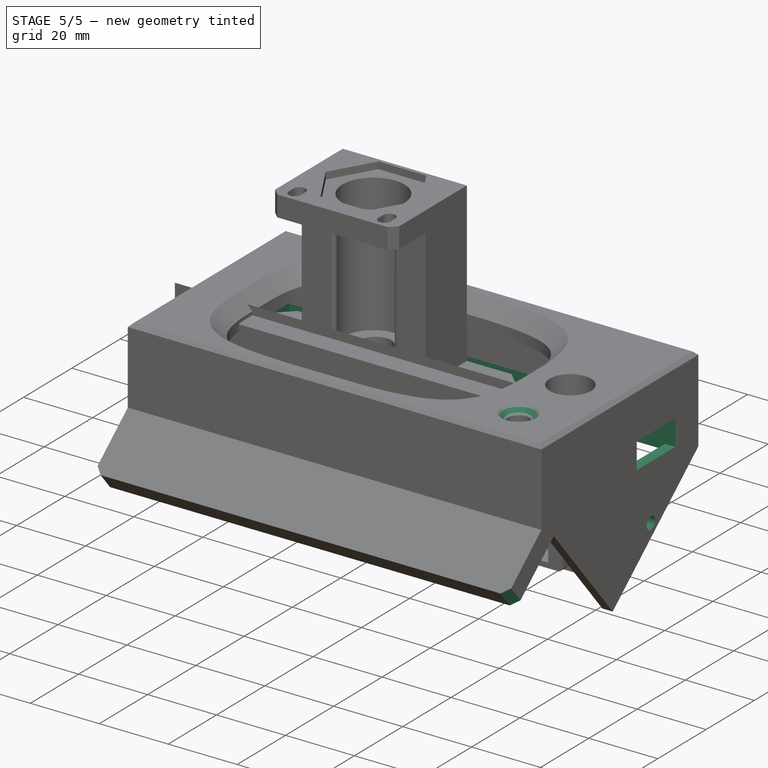
[diagram: stage 5 of 5 — iso view after this stage's code; geometry added in this stage tinted green]
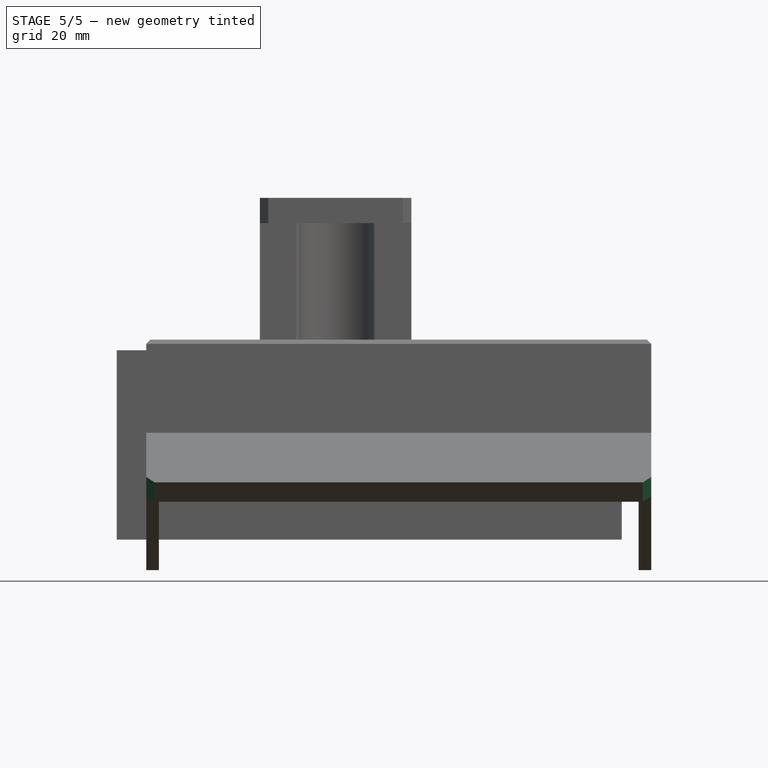
[diagram: stage 5 of 5 — front view after this stage's code; geometry added in this stage tinted green]
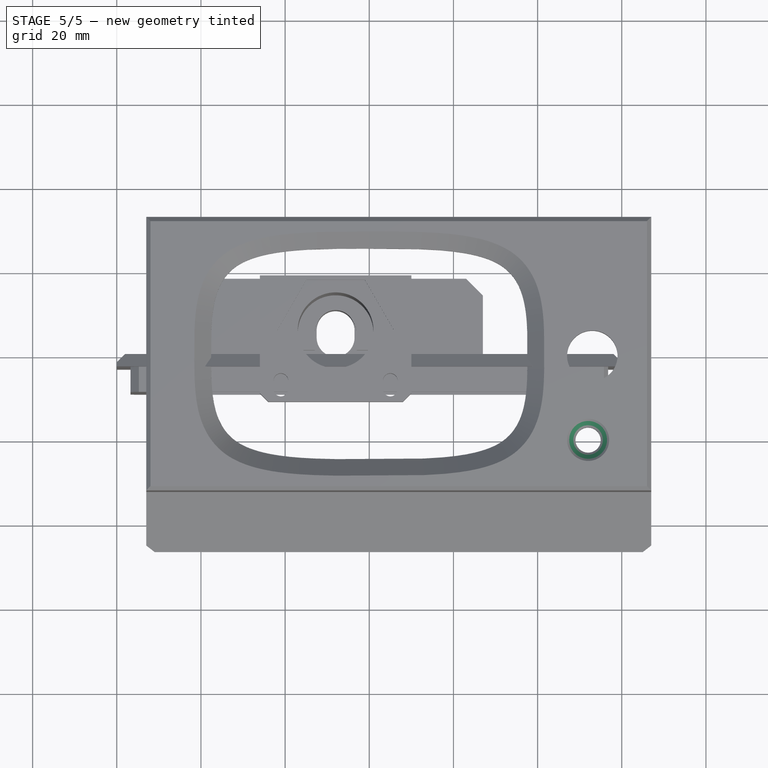
[diagram: stage 5 of 5 — top view after this stage's code; geometry added in this stage tinted green]
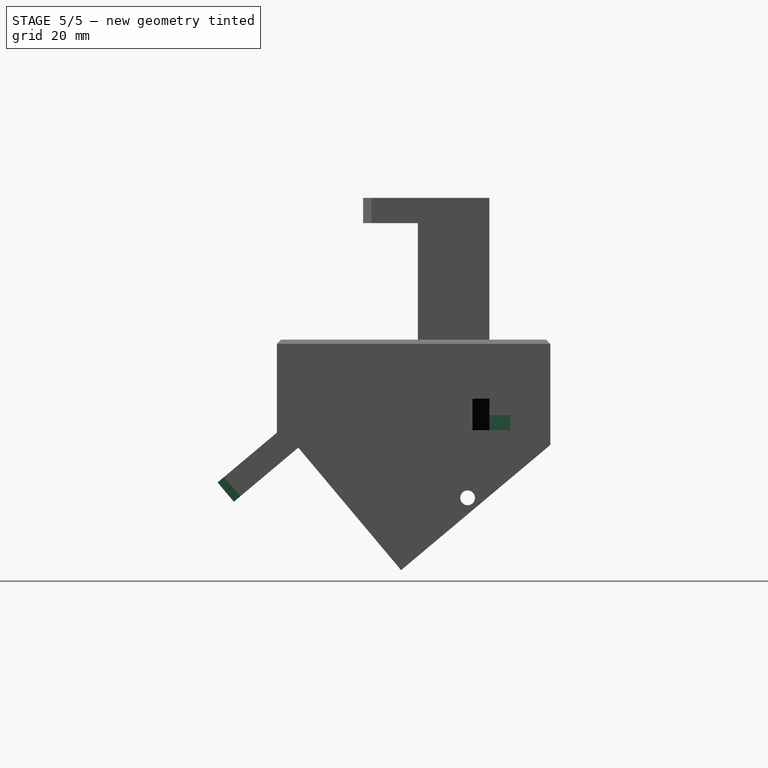
[diagram: stage 5 of 5 — right view after this stage's code; geometry added in this stage tinted green]
FEATURE [Sketcher::SketchObject] Sketch015
  FullyConstrained = true
  MapMode = 5
  Placement = pos=(0,0,13.5) rot=(1,0,0;3.14159rad)
  sketch-geometry (4):
    g0: LineSegment StartX=-50 StartY=30 StartZ=0 EndX=64 EndY=30 EndZ=0
    g1: LineSegment StartX=64 StartY=30 StartZ=0 EndX=64 EndY=-30 EndZ=0
    g2: LineSegment StartX=64 StartY=-30 StartZ=0 EndX=-50 EndY=-30 EndZ=0
    g3: LineSegment StartX=-50 StartY=-30 StartZ=0 EndX=-50 EndY=30 EndZ=0
  constraints (11):
    c: Coincident(g0,g1)
    c: Coincident(g1,g2)
    c: Coincident(g2,g3)
    c: Coincident(g3,g0)
    c: Horizontal(g0)
    c: Horizontal(g2)
    c: Vertical(g1)
    c: DistanceX(g0) = 64
    c: DistanceX(g0) = -50
    c: Distance(g3) = 60
    c: Symmetric(g2,g0,g-1)
FEATURE [PartDesign::Pocket] Pocket006
  BaseFeature = -> Pad002
  Length = 47
  Length2 = 100
  Profile = -> Sketch015
  Reversed = true
  Type = 0
FEATURE [Sketcher::SketchObject] Sketch016
  FullyConstrained = true
  MapMode = 5
  Placement = pos=(67,0,0) rot=(0.57735,0.57735,0.57735;2.0944rad)
  Support = -> [Pocket006]
  sketch-geometry (4):
    g0: LineSegment StartX=7 StartY=11 StartZ=0 EndX=23 EndY=11 EndZ=0
    g1: LineSegment StartX=23 StartY=11 StartZ=0 EndX=23 EndY=3.5 EndZ=0
    g2: LineSegment StartX=23 StartY=3.5 StartZ=0 EndX=7 EndY=3.5 EndZ=0
    g3: LineSegment StartX=7 StartY=3.5 StartZ=0 EndX=7 EndY=11 EndZ=0
  constraints (12):
    c: Coincident(g0,g1)
    c: Coincident(g1,g2)
    c: Coincident(g2,g3)
    c: Coincident(g3,g0)
    c: Horizontal(g0)
    c: Horizontal(g2)
    c: Vertical(g1)
    c: Vertical(g3)
    c: Distance(g1) = 7.5
    c: Distance(g2) = 16
    c: DistanceX(g0) = 7
    c: DistanceY(g0) = 11
FEATURE [PartDesign::Pocket] Pocket007
  BaseFeature = -> Pocket006
  Length = 9
  Length2 = 100
  Profile = -> Sketch016
  Type = 0
FEATURE [PartDesign::Chamfer] Chamfer001
  Angle = 45
  Base = -> Pocket007 [Edge6]
  BaseFeature = -> Pocket007
  ChamferType = 0
  FlipDirection = false
  Size = 2
  Size2 = 1
  SupportTransform = false
FEATURE [Sketcher::SketchObject] Sketch021
  FullyConstrained = true
  MapMode = 5
  Placement = pos=(0,-9,1.5e-14) rot=(1,0,0;1.5708rad)
  sketch-geometry (4):
    g0: LineSegment StartX=-52.5 StartY=18.5 StartZ=0 EndX=52.5 EndY=18.5 EndZ=0
    g1: LineSegment StartX=52.5 StartY=18.5 StartZ=0 EndX=52.5 EndY=-18.5 EndZ=0
    g2: LineSegment StartX=52.5 StartY=-18.5 StartZ=0 EndX=-52.5 EndY=-18.5 EndZ=0
    g3: LineSegment StartX=-52.5 StartY=-18.5 StartZ=0 EndX=-52.5 EndY=18.5 EndZ=0
  constraints (11):
    c: Coincident(g0,g1)
    c: Coincident(g1,g2)
    c: Coincident(g2,g3)
    c: Coincident(g3,g0)
    c: Horizontal(g0)
    c: Horizontal(g2)
    c: Vertical(g1)
    c: Vertical(g3)
    c: Distance(g0) = 105
    c: Symmetric(g0,g2,g-1)
    c: Distance(g1) = 37
FEATURE [Sketcher::SketchObject] Sketch022
  ExternalGeometry = -> [Chamfer001]
  FullyConstrained = true
  MapMode = 5
  Placement = pos=(-53,0,0) rot=(0.57735,-0.57735,-0.57735;2.0944rad)
  Support = -> [Chamfer001]
  sketch-geometry (2):
    g0: Circle CenterX=-12.8334 CenterY=-12.586 CenterZ=0 NormalX=0 NormalY=0 NormalZ=1 AngleXU=0 Radius=1.75
    g1: LineSegment StartX=-30.5716 StartY=2.29813 StartZ=0 EndX=4.90481 EndY=-27.4701 EndZ=0
  constraints (6):
    c: Parallel(g1,g-3)
    c: Distance(g1,g-3) = 3
    c: Equal(g1,g-3)
    c: Symmetric(g1,g1,g0)
    c: Diameter(g0) = 3.5
    c: PointOnObject(g1,g-4)
FEATURE [PartDesign::Pocket] Pocket010
  BaseFeature = -> Chamfer001
  Length = 5
  Length2 = 100
  Profile = -> Sketch022
  Type = 1
FEATURE [PartDesign::Chamfer] Chamfer005
  Angle = 45
  Base = -> Pocket010 [Edge97]
  BaseFeature = -> Pocket010
  ChamferType = 0
  FlipDirection = false
  Size = 2
  Size2 = 1
  SupportTransform = false
FEATURE [PartDesign::Chamfer] Chamfer006
  Angle = 45
  Base = -> Chamfer005 [Edge23]
  BaseFeature = -> Chamfer005
  ChamferType = 0
  FlipDirection = false
  Size = 2
  Size2 = 1
  SupportTransform = false
FEATURE [Sketcher::SketchObject] Sketch023
  FullyConstrained = true
  MapMode = 5
  Placement = pos=(0,-10.9977,13.1066) rot=(1,0,0;3.83972rad)
  Support = -> [Chamfer006]
  sketch-geometry (2):
    g0: Circle CenterX=-37 CenterY=32 CenterZ=0 NormalX=0 NormalY=0 NormalZ=1 AngleXU=0 Radius=6.5
    g1: Circle CenterX=37 CenterY=32 CenterZ=0 NormalX=0 NormalY=0 NormalZ=1 AngleXU=0 Radius=6.5
  constraints (5):
    c: Diameter(g1) = 13
    c: Equal(g1,g0)
    c: Symmetric(g1,g0,g-2)
    c: DistanceY(g0) = 32
    c: Distance(g1,g0) = 74
FEATURE [PartDesign::Pocket] Pocket011
  BaseFeature = -> Chamfer006
  Length = 2.3
  Length2 = 100
  Profile = -> Sketch023
  Type = 0
FEATURE [PartDesign::Chamfer] Chamfer007
  Angle = 45
  Base = -> Pocket011 [Edge74,Edge75,Edge31,Edge67]
  BaseFeature = -> Pocket011
  ChamferType = 0
  FlipDirection = false
  Size = 1
  Size2 = 1
  SupportTransform = false
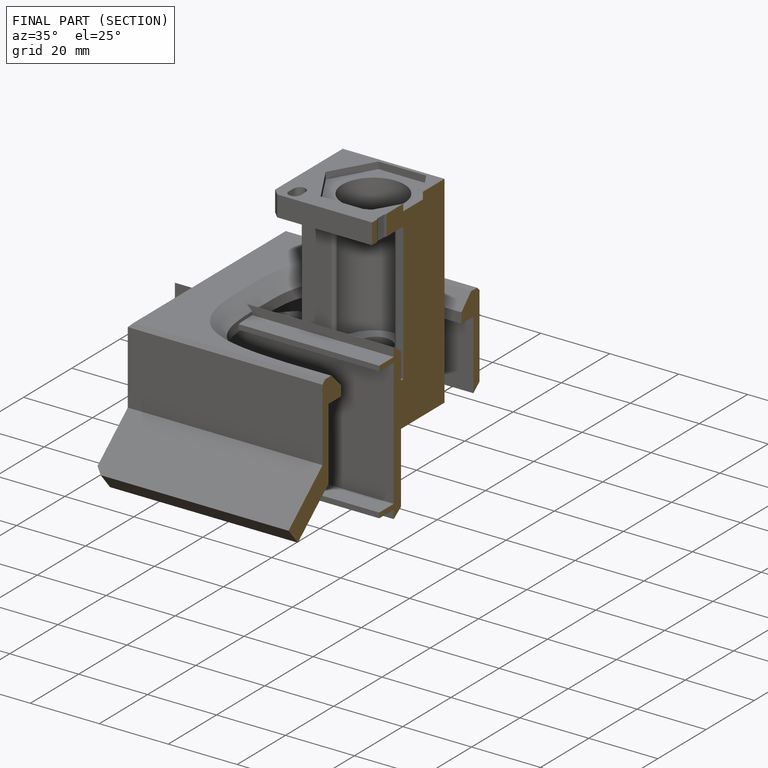
[diagram: finished part — half-section view (interior)]
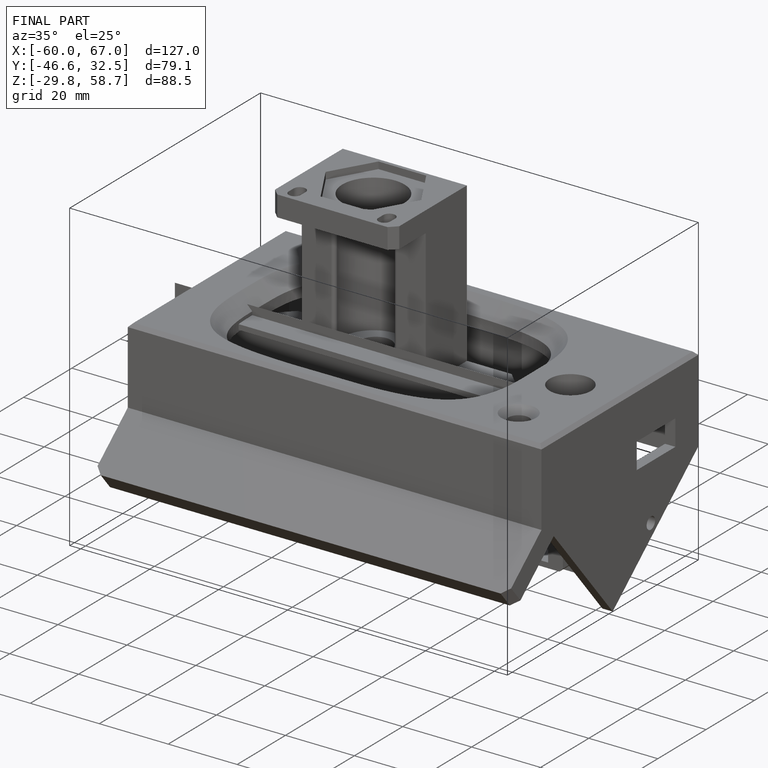
[diagram: finished part — iso view with bounding-box wireframe]
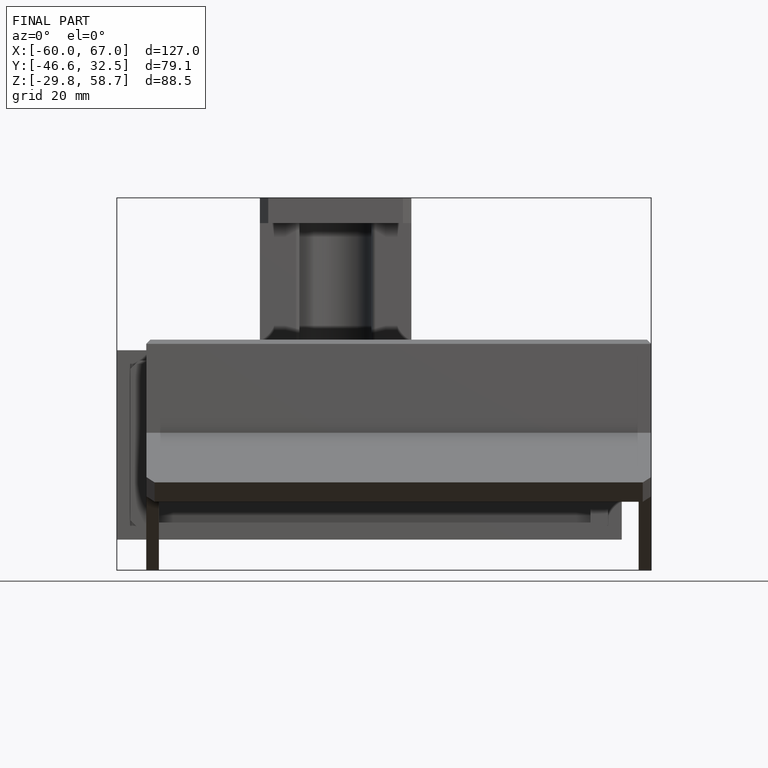
[diagram: finished part — front view with bounding-box wireframe]
